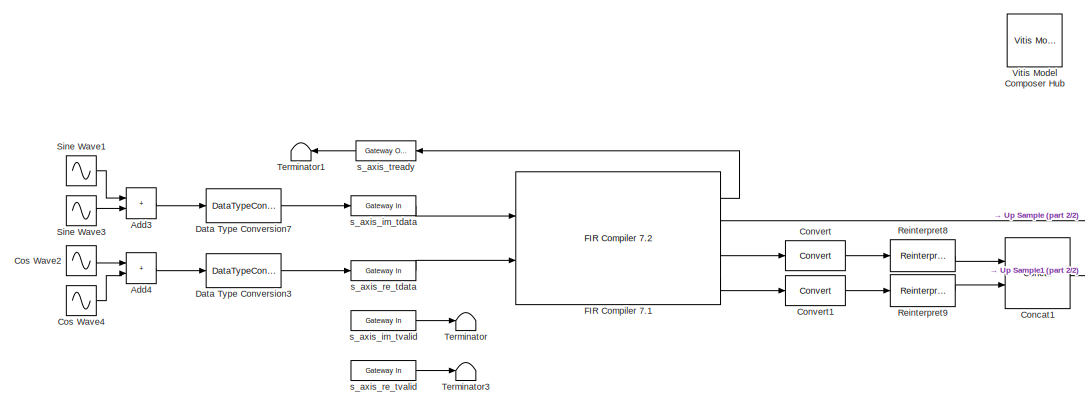
[diagram: root canvas - part 1/2, left side, full height]
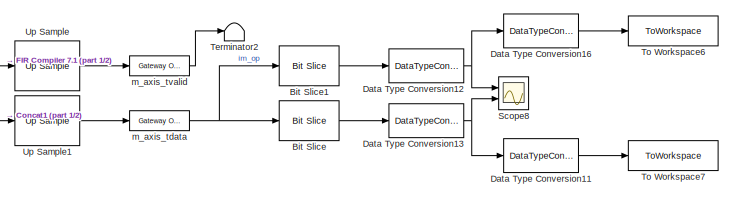
[diagram: root canvas - part 2/2, middle right region]
MODEL slx_86bd6f7e241a
KIND model
CONFIG AbsTol = auto
CONFIG EnableMultiTasking = off
CONFIG FixedStep = auto
CONFIG InitFcn = fs = 61.44e6\nfclk = 122.88e6\nf = 12.288e6\n\nsrc = dsp.SampleRateConverter( ...\n    'InputSampleRate', fclk, ...\n    'OutputSampleRate', fs, ...\n    'OutputRateTolerance', 0, ...\n    'Bandwidth', fs*0.8, ...\n    'StopbandAttenuation', 90)
CONFIG MaxStep = auto
CONFIG MinStep = auto
CONFIG RelTol = 1e-3
CONFIG SampleTimeConstraint = Unconstrained
CONFIG SolverName = VariableStepAuto
CONFIG StartTime = 0.0
CONFIG StopTime = 4096/fs
BLOCK [Sum] Add3
  IconShape = rectangular
  Ports = [2, 1]
BLOCK [Sum] Add4
  IconShape = rectangular
  Ports = [2, 1]
BLOCK [Reference] Bit Slice  REF=hdlsllib/Logic and Bit
Operations/Bit Slice
  Ports = [1, 1]
  SourceBlock = hdlsllib/Logic and Bit\nOperations/Bit Slice
  SourceProductBaseCode = SL
  SourceType = Bit Slice
BLOCK [Reference] Bit Slice1  REF=hdlsllib/Logic and Bit
Operations/Bit Slice
  Ports = [1, 1]
  SourceBlock = hdlsllib/Logic and Bit\nOperations/Bit Slice
  SourceProductBaseCode = SL
  SourceType = Bit Slice
BLOCK [Reference] Concat1  REF=hdlBasic/Concat
  Ports = [2, 1]
  SourceBlock = hdlBasic/Concat
  SourceType = Bus Concatenator Block
BLOCK [Reference] Convert  REF=hdlBasic/Convert
  Ports = [1, 1]
  SourceBlock = hdlBasic/Convert
  SourceType = Type Converter Block
BLOCK [Reference] Convert1  REF=hdlBasic/Convert
  Ports = [1, 1]
  SourceBlock = hdlBasic/Convert
  SourceType = Type Converter Block
BLOCK [Sin] Cos Wave2
  Amplitude = .1
  Frequency = f*2*pi
  Phase = pi/2
  Ports = [0, 1]
  SampleTime = 1/fclk
BLOCK [Sin] Cos Wave4
  Amplitude = .1
  Frequency = f*pi
  Phase = pi/2
  Ports = [0, 1]
  SampleTime = 1/fclk
BLOCK [DataTypeConversion] Data Type Conversion11
  OutDataTypeStr = double
  RndMeth = Floor
BLOCK [DataTypeConversion] Data Type Conversion12
  ConvertRealWorld = Stored Integer (SI)
  OutDataTypeStr = fixdt(1,16,15)
  RndMeth = Floor
  SaturateOnIntegerOverflow = off
BLOCK [DataTypeConversion] Data Type Conversion13
  ConvertRealWorld = Stored Integer (SI)
  OutDataTypeStr = fixdt(1,16,15)
  RndMeth = Floor
  SaturateOnIntegerOverflow = off
BLOCK [DataTypeConversion] Data Type Conversion16
  OutDataTypeStr = double
  RndMeth = Floor
BLOCK [DataTypeConversion] Data Type Conversion3
  OutDataTypeStr = fixdt(1,16,15)
  RndMeth = Floor
BLOCK [DataTypeConversion] Data Type Conversion7
  OutDataTypeStr = fixdt(1,16,15)
  RndMeth = Floor
BLOCK [Reference] FIR Compiler 7.1  REF=hdlDSPIP/FIR Compiler 7.2 
  Ports = [2, 4]
  SourceBlock = hdlDSPIP/FIR Compiler 7.2
  SourceType = FIR Compiler 7.2 Block
BLOCK [Reference] Reinterpret8  REF=hdlBasic/Reinterpret
  Ports = [1, 1]
  SourceBlock = hdlBasic/Reinterpret
  SourceType = Type Reinterpreter Block
BLOCK [Reference] Reinterpret9  REF=hdlBasic/Reinterpret
  Ports = [1, 1]
  SourceBlock = hdlBasic/Reinterpret
  SourceType = Type Reinterpreter Block
BLOCK [Scope] Scope8
  Floating = off
  NumInputPorts = 2
  Ports = [2]
  ScopeSpecificationString = Simulink.scopes.TimeScopeBlockCfg('CurrentConfiguration', extmgr.ConfigurationSet(extmgr.Configuration('Core','General UI',true),extmgr.Configuration('Core','Source UI',true),extmgr.Configuration('Sources','WiredSimulink',true,'DataLoggingVariableName','ScopeData1'),extmgr.Configuration('Visuals','Time Domain',true,'SerializedDisplays',{struct('MinYLimReal','-0.22078','MaxYLimReal','0.22496','YLab...<+2155ch>
BLOCK [Sin] Sine Wave1
  Amplitude = .1
  Frequency = f*2*pi
  Ports = [0, 1]
  SampleTime = 1/fclk
BLOCK [Sin] Sine Wave3
  Amplitude = .1
  Frequency = f*pi
  Ports = [0, 1]
  SampleTime = 1/fclk
BLOCK [Terminator] Terminator
BLOCK [Terminator] Terminator1
  NameLocation = top
BLOCK [Terminator] Terminator2
BLOCK [Terminator] Terminator3
BLOCK [ToWorkspace] To Workspace6
  FixptAsFi = on
  MaxDataPoints = inf
  Ports = [1]
  SampleTime = -1
  Save2DSignal = 2-D array (concatenate along first dimension)
  SaveFormat = Timeseries
  VariableName = data_im_decimated
BLOCK [ToWorkspace] To Workspace7
  FixptAsFi = on
  MaxDataPoints = inf
  Ports = [1]
  SampleTime = -1
  Save2DSignal = 2-D array (concatenate along first dimension)
  SaveFormat = Timeseries
  VariableName = data_re_decimated
BLOCK [Reference] Up Sample  REF=hdlBasic/Up Sample
  Ports = [1, 1]
  SourceBlock = hdlBasic/Up Sample
  SourceType = Up Sampler Block
BLOCK [Reference] Up Sample1  REF=hdlBasic/Up Sample
  Ports = [1, 1]
  SourceBlock = hdlBasic/Up Sample
  SourceType = Up Sampler Block
BLOCK [Reference] Vitis Model Composer Hub  REF=vmcUtilities/Vitis Model Composer Hub
  Ports = []
  SourceBlock = vmcUtilities/Vitis Model Composer Hub
  SourceType = Implementation
  Tag = genX
  UserDataPersistent = on
BLOCK [Reference] m_axis_tdata  REF=hdlBasic/Gateway Out
  Ports = [1, 1]
  SourceBlock = hdlBasic/Gateway Out
  SourceType = Gateway Out Block
BLOCK [Reference] m_axis_tvalid  REF=hdlBasic/Gateway Out
  Ports = [1, 1]
  SourceBlock = hdlBasic/Gateway Out
  SourceType = Gateway Out Block
BLOCK [Reference] s_axis_im_tdata  REF=hdlBasic/Gateway In
  Ports = [1, 1]
  SourceBlock = hdlBasic/Gateway In
  SourceType = Gateway In Block
BLOCK [Reference] s_axis_im_tvalid  REF=hdlBasic/Gateway In
  Ports = [1, 1]
  SourceBlock = hdlBasic/Gateway In
  SourceType = Gateway In Block
BLOCK [Reference] s_axis_re_tdata  REF=hdlBasic/Gateway In
  Ports = [1, 1]
  SourceBlock = hdlBasic/Gateway In
  SourceType = Gateway In Block
BLOCK [Reference] s_axis_re_tvalid  REF=hdlBasic/Gateway In
  Ports = [1, 1]
  SourceBlock = hdlBasic/Gateway In
  SourceType = Gateway In Block
BLOCK [Reference] s_axis_tready  REF=hdlBasic/Gateway Out
  Ports = [1, 1]
  SourceBlock = hdlBasic/Gateway Out
  SourceType = Gateway Out Block
LINE Add3:1 -> Data Type Conversion7:1
LINE Add4:1 -> Data Type Conversion3:1
LINE Bit Slice1:1 -> Data Type Conversion12:1
LINE Bit Slice:1 -> Data Type Conversion13:1
LINE Concat1:1 -> Up Sample1:1
LINE Convert1:1 -> Reinterpret9:1
LINE Convert:1 -> Reinterpret8:1
LINE Cos Wave2:1 -> Add4:1
LINE Cos Wave4:1 -> Add4:2
LINE Data Type Conversion11:1 -> To Workspace7:1
NET Data Type Conversion12:1 -> Data Type Conversion16:1, Scope8:1
NET Data Type Conversion13:1 -> Data Type Conversion11:1, Scope8:2
LINE Data Type Conversion16:1 -> To Workspace6:1
LINE Data Type Conversion3:1 -> s_axis_re_tdata:1
LINE Data Type Conversion7:1 -> s_axis_im_tdata:1
LINE FIR Compiler 7.1:1 -> s_axis_tready:1
LINE FIR Compiler 7.1:2 -> Up Sample:1
LINE FIR Compiler 7.1:3 -> Convert:1
LINE FIR Compiler 7.1:4 -> Convert1:1
LINE Reinterpret8:1 -> Concat1:1
LINE Reinterpret9:1 -> Concat1:2
LINE Sine Wave1:1 -> Add3:1
LINE Sine Wave3:1 -> Add3:2
LINE Up Sample1:1 -> m_axis_tdata:1
LINE Up Sample:1 -> m_axis_tvalid:1
NET m_axis_tdata:1 -> Bit Slice1:1, Bit Slice:1
LINE m_axis_tvalid:1 -> Terminator2:1
LINE s_axis_im_tdata:1 -> FIR Compiler 7.1:1
LINE s_axis_im_tvalid:1 -> Terminator:1
LINE s_axis_re_tdata:1 -> FIR Compiler 7.1:2
LINE s_axis_re_tvalid:1 -> Terminator3:1
LINE s_axis_tready:1 -> Terminator1:1
note: NET lines group one-source signal fan-out (src -> all destinations, sorted); 1:1 wires keep LINE
